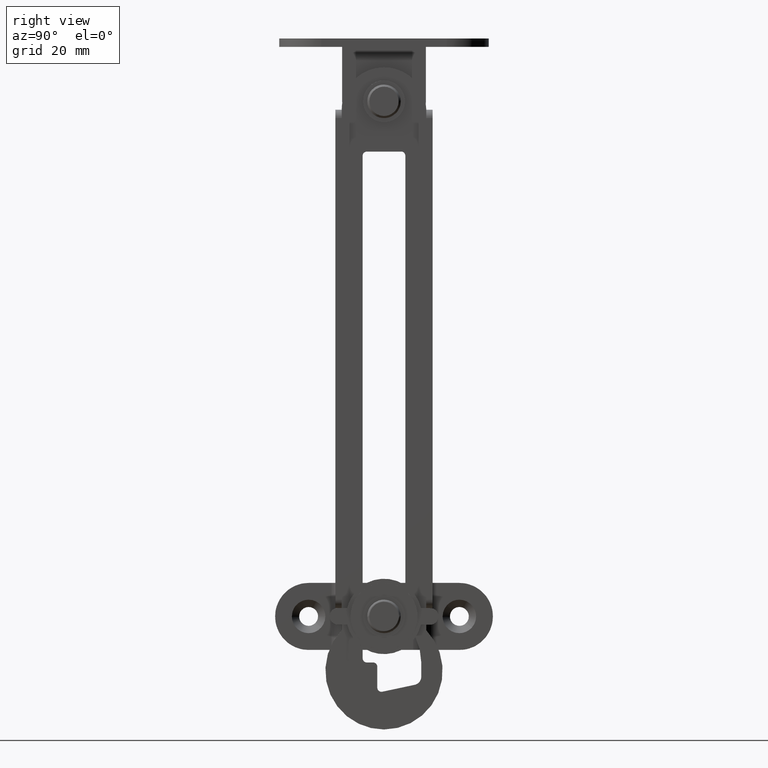
[diagram: clean part render]
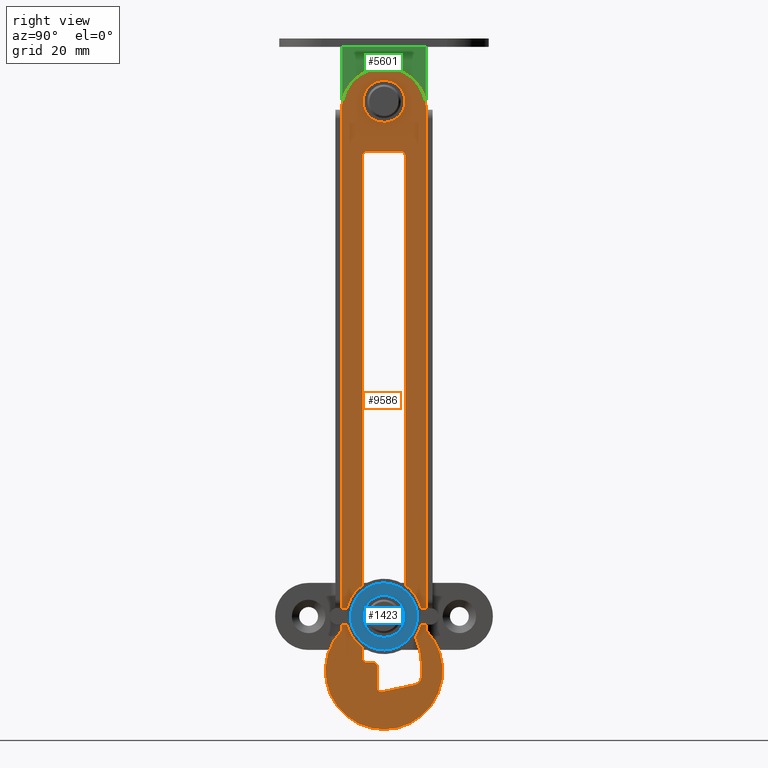
[diagram: same view with three faces highlighted in distinct colors, each labeled with its STEP entity id]
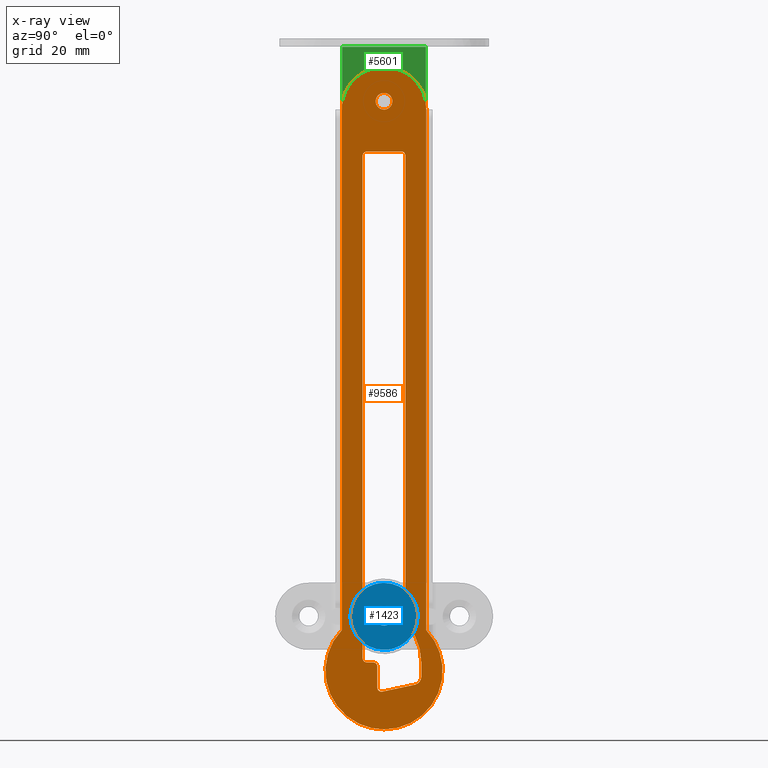
[diagram: x-ray of the same camera — body ghosted, the three highlighted faces saturated]
A machine part, right view with three faces highlighted in distinct colors.
The next image is the same camera in x-ray (body ghosted, the three faces saturated) — at least one of them is partly hidden behind the body in this view.
Their STEP definitions:

[orange] entity #9586 — the highlighted face is a freeform B-spline surface patch.
#7898=CARTESIAN_POINT('',(6.500000000000000,-1.401818130425980,1.426501270304761));
#7899=VERTEX_POINT('',#7898);
#7905=CARTESIAN_POINT('',(6.500000000000000,-1.999999999999999,-0.000000055035999));
#7906=VERTEX_POINT('',#7905);
#7907=CARTESIAN_POINT('',(6.500000000000000,-1.999999999999999,-0.000000055035999));
#7908=CARTESIAN_POINT('',(6.499999999999998,-2.000801605296121,0.331074792098914));
#7909=CARTESIAN_POINT('',(6.499999999999989,-1.865379621508600,0.859626920912765));
#7910=CARTESIAN_POINT('',(6.500000000000007,-1.543471408052776,1.287396064692109));
#7911=CARTESIAN_POINT('',(6.500000000000000,-1.401818130425980,1.426501270304761));
#7912=B_SPLINE_CURVE_WITH_KNOTS('',3,(#7907,#7908,#7909,#7910,#7911),.UNSPECIFIED.,.F.,.U.,(4,1,4),(0.000000148909229,0.992664741090703,1.588290959198804),.UNSPECIFIED.);
#7913=EDGE_CURVE('',#7906,#7899,#7912,.T.);
#7915=CARTESIAN_POINT('',(6.500000000000000,0.0,-2.0));
#7916=VERTEX_POINT('',#7915);
#7917=CARTESIAN_POINT('',(6.500000000000000,0.0,-2.0));
#7918=CARTESIAN_POINT('',(6.500000000000002,-0.196326236803006,-2.000025129273309));
#7919=CARTESIAN_POINT('',(6.500000000000007,-0.654572953151147,-1.932213638662527));
#7920=CARTESIAN_POINT('',(6.499999999999980,-1.242929850331033,-1.617733343522101));
#7921=CARTESIAN_POINT('',(6.500000000000023,-1.653785319402174,-1.164054646524848));
#7922=CARTESIAN_POINT('',(6.499999999999993,-1.926761413123408,-0.638004529938924));
#7923=CARTESIAN_POINT('',(6.500000000000006,-2.000198975283831,-0.245471631698664));
#7924=CARTESIAN_POINT('',(6.500000000000000,-1.999999999999999,-0.000000055035999));
#7925=B_SPLINE_CURVE_WITH_KNOTS('',3,(#7917,#7918,#7919,#7920,#7921,#7922,#7923,#7924),.UNSPECIFIED.,.F.,.U.,(4,1,1,1,1,4),(0.000000633118132,0.589043774118171,1.374526089243631,1.963502022072255,2.405343520437926,3.141671457811024),.UNSPECIFIED.);
#7926=EDGE_CURVE('',#7916,#7906,#7925,.T.);
#7928=CARTESIAN_POINT('',(6.500000000000000,1.401818130425981,-1.426501270304762));
#7929=VERTEX_POINT('',#7928);
#7930=CARTESIAN_POINT('',(6.500000000000000,1.401818130425981,-1.426501270304762));
#7931=CARTESIAN_POINT('',(6.499999999999995,1.286420066040690,-1.539879864862290));
#7932=CARTESIAN_POINT('',(6.500000000000021,0.872917608500746,-1.858060431330297));
#7933=CARTESIAN_POINT('',(6.499999999999992,0.356252315885464,-2.000993771219614));
#7934=CARTESIAN_POINT('',(6.500000000000000,0.0,-2.0));
#7935=B_SPLINE_CURVE_WITH_KNOTS('',3,(#7930,#7931,#7932,#7933,#7934),.UNSPECIFIED.,.F.,.U.,(4,1,4),(0.000057332588186,0.485474589826488,1.553409172210848),.UNSPECIFIED.);
#7936=EDGE_CURVE('',#7929,#7916,#7935,.T.);
#7975=CARTESIAN_POINT('',(6.500000000000000,1.999999999999999,0.000000055035993));
#7976=VERTEX_POINT('',#7975);
#7977=CARTESIAN_POINT('',(6.500000000000000,1.999999999999999,0.000000055035993));
#7978=CARTESIAN_POINT('',(6.499999999999994,2.000033243038247,-0.198510924622109));
#7979=CARTESIAN_POINT('',(6.500000000000023,1.920725826528605,-0.728047369380959));
#7980=CARTESIAN_POINT('',(6.499999999999989,1.638410878529170,-1.194951607714130));
#7981=CARTESIAN_POINT('',(6.500000000000000,1.401818130425981,-1.426501270304762));
#7982=B_SPLINE_CURVE_WITH_KNOTS('',3,(#7977,#7978,#7979,#7980,#7981),.UNSPECIFIED.,.F.,.U.,(4,1,4),(0.000000148909258,0.595626367022481,1.588290959198798),.UNSPECIFIED.);
#7983=EDGE_CURVE('',#7976,#7929,#7982,.T.);
#7985=CARTESIAN_POINT('',(6.500000000000000,0.0,2.0));
#7986=VERTEX_POINT('',#7985);
#7987=CARTESIAN_POINT('',(6.500000000000000,0.0,2.0));
#7988=CARTESIAN_POINT('',(6.500000000000009,0.196348095666510,2.000070016343258));
#7989=CARTESIAN_POINT('',(6.499999999999984,0.589002105534888,1.941702682557977));
#7990=CARTESIAN_POINT('',(6.500000000000006,1.187280142726105,1.659028552174805));
#7991=CARTESIAN_POINT('',(6.500000000000001,1.623590074524727,1.222641936926909));
#7992=CARTESIAN_POINT('',(6.499999999999993,1.926727771590865,0.637989628471462));
#7993=CARTESIAN_POINT('',(6.500000000000004,2.000223993982883,0.245475106367751));
#7994=CARTESIAN_POINT('',(6.500000000000000,1.999999999999999,0.000000055035993));
#7995=B_SPLINE_CURVE_WITH_KNOTS('',3,(#7987,#7988,#7989,#7990,#7991,#7992,#7993,#7994),.UNSPECIFIED.,.F.,.U.,(4,1,1,1,1,4),(0.000000633118024,0.589043774118085,1.178173068856876,1.963502022072236,2.405343520437921,3.141671457811028),.UNSPECIFIED.);
#7996=EDGE_CURVE('',#7986,#7976,#7995,.T.);
#7998=CARTESIAN_POINT('',(6.500000000000000,-1.401818130425980,1.426501270304761));
#7999=CARTESIAN_POINT('',(6.499999999999999,-1.286420276562166,1.539880824592787));
#8000=CARTESIAN_POINT('',(6.499999999999999,-0.872917935235357,1.858059068356832));
#8001=CARTESIAN_POINT('',(6.500000000000010,-0.356252374318572,2.000994025447797));
#8002=CARTESIAN_POINT('',(6.500000000000000,0.0,2.0));
#8003=B_SPLINE_CURVE_WITH_KNOTS('',3,(#7998,#7999,#8000,#8001,#8002),.UNSPECIFIED.,.F.,.U.,(4,1,4),(0.000057332588200,0.485474589826494,1.553409172210848),.UNSPECIFIED.);
#8004=EDGE_CURVE('',#7899,#7986,#8003,.T.);
#8685=CARTESIAN_POINT('',(6.500000000000000,-4.100007000000000,-12.0));
#8686=VERTEX_POINT('',#8685);
#8692=CARTESIAN_POINT('',(6.500000000000000,-5.100006999999830,-13.0));
#8693=VERTEX_POINT('',#8692);
#8694=CARTESIAN_POINT('',(6.500000000000000,-4.100007000000000,-12.0));
#8695=CARTESIAN_POINT('',(6.500000000000006,-4.296573827954636,-11.999277529240290));
#8696=CARTESIAN_POINT('',(6.500000000000004,-4.573841329061533,-12.084567592972800));
#8697=CARTESIAN_POINT('',(6.500000000000000,-4.860905272052997,-12.332430680271900));
#8698=CARTESIAN_POINT('',(6.499999999999985,-5.044749060021313,-12.607446855269879));
#8699=CARTESIAN_POINT('',(6.500000000000000,-5.100246897223162,-12.852691474383359));
#8700=CARTESIAN_POINT('',(6.500000000000000,-5.100006999999830,-13.0));
#8701=B_SPLINE_CURVE_WITH_KNOTS('',3,(#8694,#8695,#8696,#8697,#8698,#8699,#8700),.UNSPECIFIED.,.F.,.U.,(4,1,1,1,4),(0.000001035569130,0.589114396690603,0.834502874643626,1.129115061550070,1.570953883565058),.UNSPECIFIED.);
#8702=EDGE_CURVE('',#8686,#8693,#8701,.T.);
#8719=CARTESIAN_POINT('',(6.500000000000000,-5.100007000000000,-133.000014999999990));
#8720=VERTEX_POINT('',#8719);
#8721=CARTESIAN_POINT('',(6.500000000000000,-5.100007000000000,-133.000014999999990));
#8722=CARTESIAN_POINT('',(6.500000000000000,-5.100006999999830,-13.0));
#8723=QUASI_UNIFORM_CURVE('',1,(#8721,#8722),.UNSPECIFIED.,.F.,.U.);
#8724=EDGE_CURVE('',#8720,#8693,#8723,.T.);
#8750=CARTESIAN_POINT('',(6.500000000000000,-4.100007000000000,-134.000014999999990));
#8751=VERTEX_POINT('',#8750);
#8752=CARTESIAN_POINT('',(6.500000000000000,-5.100007000000000,-133.000014999999990));
#8753=CARTESIAN_POINT('',(6.500000000000000,-5.100237715980876,-133.147330681326990));
#8754=CARTESIAN_POINT('',(6.500000000000002,-5.044749797601982,-133.392555860850990));
#8755=CARTESIAN_POINT('',(6.500000000000002,-4.833403862625243,-133.708944593659310));
#8756=CARTESIAN_POINT('',(6.500000000000001,-4.525268960487343,-133.937462948803610));
#8757=CARTESIAN_POINT('',(6.499999999999999,-4.247312817795333,-134.000229991209810));
#8758=CARTESIAN_POINT('',(6.500000000000000,-4.100007000000000,-134.000014999999990));
#8759=B_SPLINE_CURVE_WITH_KNOTS('',3,(#8752,#8753,#8754,#8755,#8756,#8757,#8758),.UNSPECIFIED.,.F.,.U.,(4,1,1,1,4),(0.000001035571785,0.441839857585976,0.736452044491731,1.129115061550782,1.570953883565300),.UNSPECIFIED.);
#8760=EDGE_CURVE('',#8720,#8751,#8759,.T.);
#8777=CARTESIAN_POINT('',(6.500000000000000,-2.600006336774890,-134.000015000000190));
#8778=VERTEX_POINT('',#8777);
#8779=CARTESIAN_POINT('',(6.500000000000000,-2.600006336774890,-134.000015000000190));
#8780=CARTESIAN_POINT('',(6.500000000000000,-4.100007000000000,-134.000014999999990));
#8781=QUASI_UNIFORM_CURVE('',1,(#8779,#8780),.UNSPECIFIED.,.F.,.U.);
#8782=EDGE_CURVE('',#8778,#8751,#8781,.T.);
#8808=CARTESIAN_POINT('',(6.500000000000000,-1.600006999999950,-135.000014999999990));
#8809=VERTEX_POINT('',#8808);
#8810=CARTESIAN_POINT('',(6.500000000000000,-1.600006999999950,-135.000014999999990));
#8811=CARTESIAN_POINT('',(6.500000000000004,-1.599320268089568,-134.803478872693400));
#8812=CARTESIAN_POINT('',(6.499999999999986,-1.699618341230053,-134.477169516926890));
#8813=CARTESIAN_POINT('',(6.500000000000025,-2.077103990650501,-134.099610730635310));
#8814=CARTESIAN_POINT('',(6.499999999999989,-2.403491458307358,-133.999303251696800));
#8815=CARTESIAN_POINT('',(6.500000000000000,-2.600006336774890,-134.000015000000190));
#8816=B_SPLINE_CURVE_WITH_KNOTS('',3,(#8810,#8811,#8812,#8813,#8814,#8815),.UNSPECIFIED.,.F.,.U.,(4,1,1,4),(0.000001037316957,0.589114257063140,0.981840288150958,1.570953509724183),.UNSPECIFIED.);
#8817=EDGE_CURVE('',#8809,#8778,#8816,.T.);
#8834=CARTESIAN_POINT('',(6.500000000000000,-1.600006999999760,-140.000015383972400));
#8835=VERTEX_POINT('',#8834);
#8836=CARTESIAN_POINT('',(6.500000000000000,-1.600006999999760,-140.000015383972400));
#8837=CARTESIAN_POINT('',(6.500000000000000,-1.600006999999950,-135.000014999999990));
#8838=QUASI_UNIFORM_CURVE('',1,(#8836,#8837),.UNSPECIFIED.,.F.,.U.);
#8839=EDGE_CURVE('',#8835,#8809,#8838,.T.);
#8865=CARTESIAN_POINT('',(6.500000000000000,-0.391784999999914,-140.978104000000000));
#8866=VERTEX_POINT('',#8865);
#8867=CARTESIAN_POINT('',(6.500000000000000,-1.600006999999760,-140.000015383972400));
#8868=CARTESIAN_POINT('',(6.500000000000000,-1.600228572641117,-140.148434553528290));
#8869=CARTESIAN_POINT('',(6.500000000000004,-1.536919003725331,-140.426437181627790));
#8870=CARTESIAN_POINT('',(6.500000000000000,-1.277453173463461,-140.775343727704010));
#8871=CARTESIAN_POINT('',(6.499999999999998,-0.879965997921482,-140.999386699537690));
#8872=CARTESIAN_POINT('',(6.500000000000012,-0.555056611205424,-141.013241587578990));
#8873=CARTESIAN_POINT('',(6.500000000000000,-0.391784999999914,-140.978104000000000));
#8874=B_SPLINE_CURVE_WITH_KNOTS('',3,(#8867,#8868,#8869,#8870,#8871,#8872,#8873),.UNSPECIFIED.,.F.,.U.,(4,1,1,1,4),(0.000000935633885,0.445198635681058,0.834773397477701,1.279934613744671,1.780785455851858),.UNSPECIFIED.);
#8875=EDGE_CURVE('',#8835,#8866,#8874,.T.);
#8892=CARTESIAN_POINT('',(6.500000000000000,7.316435970851051,-139.337143006205390));
#8893=VERTEX_POINT('',#8892);
#8894=CARTESIAN_POINT('',(6.500000000000000,7.316435970851051,-139.337143006205390));
#8895=CARTESIAN_POINT('',(6.500000000000000,-0.391784999999914,-140.978104000000000));
#8896=QUASI_UNIFORM_CURVE('',1,(#8894,#8895),.UNSPECIFIED.,.F.,.U.);
#8897=EDGE_CURVE('',#8893,#8866,#8896,.T.);
#8923=CARTESIAN_POINT('',(6.500000000000000,8.899993000000000,-137.380966000000000));
#8924=VERTEX_POINT('',#8923);
#8925=CARTESIAN_POINT('',(6.500000000000000,7.316435970851051,-139.337143006205390));
#8926=CARTESIAN_POINT('',(6.499999999999996,7.538308659320008,-139.289999308364910));
#8927=CARTESIAN_POINT('',(6.500000000000001,8.019351355174040,-139.098042583357800));
#8928=CARTESIAN_POINT('',(6.500000000000006,8.564489234545379,-138.577181319789190));
#8929=CARTESIAN_POINT('',(6.499999999999994,8.849132851596448,-137.948071027729410));
#8930=CARTESIAN_POINT('',(6.500000000000012,8.900012018851143,-137.551082938329100));
#8931=CARTESIAN_POINT('',(6.500000000000000,8.899993000000000,-137.380966000000000));
#8932=B_SPLINE_CURVE_WITH_KNOTS('',3,(#8925,#8926,#8927,#8928,#8929,#8930,#8931),.UNSPECIFIED.,.F.,.U.,(4,1,1,1,4),(0.000000313227684,0.680578689556774,1.531269298057837,2.211891206057402,2.722300717061263),.UNSPECIFIED.);
#8933=EDGE_CURVE('',#8893,#8924,#8932,.T.);
#8950=CARTESIAN_POINT('',(6.500000000000000,8.899992999999480,-134.000019398229800));
#8951=VERTEX_POINT('',#8950);
#8952=CARTESIAN_POINT('',(6.500000000000000,8.899992999999480,-134.000019398229800));
#8953=CARTESIAN_POINT('',(6.500000000000000,8.899993000000000,-137.380966000000000));
#8954=QUASI_UNIFORM_CURVE('',1,(#8952,#8953),.UNSPECIFIED.,.F.,.U.);
#8955=EDGE_CURVE('',#8951,#8924,#8954,.T.);
#8981=CARTESIAN_POINT('',(6.500000000000000,5.575004375000170,-124.942193399658000));
#8982=VERTEX_POINT('',#8981);
#8983=CARTESIAN_POINT('',(6.500000000000000,8.899992999999480,-134.000019398229800));
#8984=CARTESIAN_POINT('',(6.500000000000010,8.900813957590074,-132.563304572297400));
#8985=CARTESIAN_POINT('',(6.499999999999996,8.581172826682115,-130.511585901917900));
#8986=CARTESIAN_POINT('',(6.499999999999990,7.379457441245473,-127.448033882646900));
#8987=CARTESIAN_POINT('',(6.499999999999989,6.372019025455373,-125.880871430662490));
#8988=CARTESIAN_POINT('',(6.500000000000000,5.575004375000170,-124.942193399658000));
#8989=B_SPLINE_CURVE_WITH_KNOTS('',3,(#8983,#8984,#8985,#8986,#8987,#8988),.UNSPECIFIED.,.F.,.U.,(4,1,1,4),(0.000000056868247,4.309772587231458,6.156766020036908,9.850827064580525),.UNSPECIFIED.);
#8990=EDGE_CURVE('',#8951,#8982,#8989,.T.);
#9016=CARTESIAN_POINT('',(6.500000000000000,5.100006000000180,-123.648218885323600));
#9017=VERTEX_POINT('',#9016);
#9018=CARTESIAN_POINT('',(6.500000000000000,5.100006000000180,-123.648218885323600));
#9019=CARTESIAN_POINT('',(6.499999999999995,5.099688366262109,-123.912138341799700));
#9020=CARTESIAN_POINT('',(6.500000000000016,5.194336139970146,-124.380925548070000));
#9021=CARTESIAN_POINT('',(6.499999999999994,5.442133618227310,-124.785772954937000));
#9022=CARTESIAN_POINT('',(6.500000000000000,5.575004375000170,-124.942193399658000));
#9023=B_SPLINE_CURVE_WITH_KNOTS('',3,(#9018,#9019,#9020,#9021,#9022),.UNSPECIFIED.,.F.,.U.,(4,1,4),(0.000000098045417,0.791643323929199,1.407366598724693),.UNSPECIFIED.);
#9024=EDGE_CURVE('',#9017,#8982,#9023,.T.);
#9041=CARTESIAN_POINT('',(6.500000000000000,5.100005999999830,-13.000000488692200));
#9042=VERTEX_POINT('',#9041);
#9043=CARTESIAN_POINT('',(6.500000000000000,5.100005999999830,-13.000000488692200));
#9044=CARTESIAN_POINT('',(6.500000000000000,5.100006000000180,-123.648218885323600));
#9045=QUASI_UNIFORM_CURVE('',1,(#9043,#9044),.UNSPECIFIED.,.F.,.U.);
#9046=EDGE_CURVE('',#9042,#9017,#9045,.T.);
#9072=CARTESIAN_POINT('',(6.500000000000000,4.100005598574220,-12.0));
#9073=VERTEX_POINT('',#9072);
#9074=CARTESIAN_POINT('',(6.500000000000000,5.100005999999830,-13.000000488692200));
#9075=CARTESIAN_POINT('',(6.500000000000000,5.100061016927429,-12.885471009396230));
#9076=CARTESIAN_POINT('',(6.500000000000001,5.057450411645355,-12.640004621338489));
#9077=CARTESIAN_POINT('',(6.500000000000009,4.860284366862512,-12.310918711848240));
#9078=CARTESIAN_POINT('',(6.499999999999999,4.525241559833044,-12.062563533395631));
#9079=CARTESIAN_POINT('',(6.500000000000006,4.247309961945345,-11.999777796633779));
#9080=CARTESIAN_POINT('',(6.500000000000000,4.100005598574220,-12.0));
#9081=B_SPLINE_CURVE_WITH_KNOTS('',3,(#9074,#9075,#9076,#9077,#9078,#9079,#9080),.UNSPECIFIED.,.F.,.U.,(4,1,1,1,4),(0.000001033225177,0.343638745351987,0.736452276698785,1.129115423266536,1.570954385299348),.UNSPECIFIED.);
#9082=EDGE_CURVE('',#9042,#9073,#9081,.T.);
#9099=CARTESIAN_POINT('',(6.500000000000000,-4.100007000000000,-12.0));
#9100=CARTESIAN_POINT('',(6.500000000000000,4.100005598574220,-12.0));
#9101=QUASI_UNIFORM_CURVE('',1,(#9099,#9100),.UNSPECIFIED.,.F.,.U.);
#9102=EDGE_CURVE('',#8686,#9073,#9101,.T.);
#9157=CARTESIAN_POINT('',(6.500000000000000,-10.100007000000000,-121.000015000000000));
#9158=VERTEX_POINT('',#9157);
#9181=CARTESIAN_POINT('',(6.500000000000000,-10.100007000000000,-2.0));
#9182=VERTEX_POINT('',#9181);
#9183=CARTESIAN_POINT('',(6.500000000000000,-10.100007000000000,-2.0));
#9184=CARTESIAN_POINT('',(6.500000000000000,-10.100007000000000,-121.000015000000000));
#9185=QUASI_UNIFORM_CURVE('',1,(#9183,#9184),.UNSPECIFIED.,.F.,.U.);
#9186=EDGE_CURVE('',#9182,#9158,#9185,.T.);
#9239=CARTESIAN_POINT('',(6.500000000000000,10.100006000000061,-121.000015000000000));
#9240=VERTEX_POINT('',#9239);
#9249=CARTESIAN_POINT('',(6.500000000000000,10.100006000000061,-2.0));
#9250=VERTEX_POINT('',#9249);
#9256=CARTESIAN_POINT('',(6.500000000000000,10.100006000000061,-2.0));
#9257=CARTESIAN_POINT('',(6.500000000000000,10.100006000000061,-121.000015000000000));
#9258=QUASI_UNIFORM_CURVE('',1,(#9256,#9257),.UNSPECIFIED.,.F.,.U.);
#9259=EDGE_CURVE('',#9250,#9240,#9258,.T.);
#9327=CARTESIAN_POINT('',(6.500000000000000,10.100006000000061,-126.305177260256000));
#9328=VERTEX_POINT('',#9327);
#9329=CARTESIAN_POINT('',(6.500000000000000,10.100006000000061,-126.305177260256000));
#9330=CARTESIAN_POINT('',(6.500000000000000,10.100006000000061,-121.000015000000000));
#9331=QUASI_UNIFORM_CURVE('',1,(#9329,#9330),.UNSPECIFIED.,.F.,.U.);
#9332=EDGE_CURVE('',#9328,#9240,#9331,.T.);
#9367=CARTESIAN_POINT('',(6.500000000000001,0.000005867955349,-150.000014999998800));
#9368=VERTEX_POINT('',#9367);
#9369=CARTESIAN_POINT('',(6.500000000000001,0.000005867955349,-150.000014999998800));
#9370=CARTESIAN_POINT('',(6.500000000000004,0.425774520095588,-150.000022084726110));
#9371=CARTESIAN_POINT('',(6.500000000000010,0.894090563072024,-149.978604633431900));
#9372=CARTESIAN_POINT('',(6.500000000000000,1.402670392741061,-149.929942782536190));
#9373=CARTESIAN_POINT('',(6.500000000000004,1.529549511579449,-149.915410687428790));
#9374=CARTESIAN_POINT('',(6.500000000000002,1.698896578985876,-149.897274377073810));
#9375=CARTESIAN_POINT('',(6.499999999999988,2.796998325773016,-149.756136781638990));
#9376=CARTESIAN_POINT('',(6.500000000000034,4.501238351286051,-149.335615849556800));
#9377=CARTESIAN_POINT('',(6.499999999999969,7.035547468475508,-148.204994492189510));
#9378=CARTESIAN_POINT('',(6.500000000000054,9.423233351325568,-146.531487438783390));
#9379=CARTESIAN_POINT('',(6.499999999999928,10.954199519172640,-144.794342657089800));
#9380=CARTESIAN_POINT('',(6.500000000000020,11.645859012210620,-143.771333340668410));
#9381=CARTESIAN_POINT('',(6.500000000000002,11.738303694986440,-143.628293919034410));
#9382=CARTESIAN_POINT('',(6.500000000000002,11.808368650713209,-143.521522020562200));
#9383=CARTESIAN_POINT('',(6.500000000000005,11.944387707995871,-143.305302535985700));
#9384=CARTESIAN_POINT('',(6.499999999999997,12.075987966703270,-143.086307697634400));
#9385=CARTESIAN_POINT('',(6.500000000000004,12.201400178240471,-142.863723550973900));
#9386=CARTESIAN_POINT('',(6.500000000000002,12.285227436627039,-142.715457536091210));
#9387=CARTESIAN_POINT('',(6.500000000000002,12.365989467417030,-142.565451643847890));
#9388=CARTESIAN_POINT('',(6.499999999999998,12.443493985245279,-142.413789619405210));
#9389=CARTESIAN_POINT('',(6.500000000000005,12.502918927846240,-142.300692336937690));
#9390=CARTESIAN_POINT('',(6.500000000000001,12.558328456224670,-142.185578042143990));
#9391=CARTESIAN_POINT('',(6.499999999999999,12.615815149775070,-142.071488026888890));
#9392=CARTESIAN_POINT('',(6.500000000000004,12.669142610434950,-141.955393769055090));
#9393=CARTESIAN_POINT('',(6.499999999999901,12.706012912720350,-141.878627445924110));
#9394=CARTESIAN_POINT('',(6.500000000002959,13.221226976717359,-140.756524602107790));
#9395=CARTESIAN_POINT('',(6.499999999996724,13.605022965021490,-139.527326169190500));
#9396=CARTESIAN_POINT('',(6.500000000000354,13.822699957026570,-138.225434519750710));
#9397=CARTESIAN_POINT('',(6.500000000000044,13.847233250447680,-138.056904623220390));
#9398=CARTESIAN_POINT('',(6.499999999999993,13.873391568900320,-137.888614126090000));
#9399=CARTESIAN_POINT('',(6.499999999999996,13.893337224818151,-137.719471684788400));
#9400=CARTESIAN_POINT('',(6.500000000000025,13.919480993299050,-137.508213394569990));
#9401=CARTESIAN_POINT('',(6.500000000000084,13.931795736454511,-137.381074467340000));
#9402=CARTESIAN_POINT('',(6.499999999999862,14.074728655620850,-135.854761098766010));
#9403=CARTESIAN_POINT('',(6.499999999999962,13.939119223623610,-133.704520781916390));
#9404=CARTESIAN_POINT('',(6.499999999999998,13.058484315604231,-130.759445194353500));
#9405=CARTESIAN_POINT('',(6.500000000000013,12.292863901248650,-129.228493146401210));
#9406=CARTESIAN_POINT('',(6.499999999999997,11.715552956743720,-128.334085918888090));
#9407=CARTESIAN_POINT('',(6.500000000000001,11.620102760016231,-128.193025440225400));
#9408=CARTESIAN_POINT('',(6.500000000000000,11.549728889175450,-128.086401542961200));
#9409=CARTESIAN_POINT('',(6.500000000000002,11.475616091022090,-127.982344478540800));
#9410=CARTESIAN_POINT('',(6.500000000000000,11.403402077619790,-127.876961596371400));
#9411=CARTESIAN_POINT('',(6.500000000000000,11.327426333836240,-127.774255182424300));
#9412=CARTESIAN_POINT('',(6.500000000000016,11.277970506347110,-127.704924223572110));
#9413=CARTESIAN_POINT('',(6.499999999999859,10.898052787607041,-127.191598331048700));
#9414=CARTESIAN_POINT('',(6.500000000000289,10.512776214416570,-126.735173000577900));
#9415=CARTESIAN_POINT('',(6.500000000000000,10.100006000000061,-126.305177260256000));
#9416=B_SPLINE_CURVE_WITH_KNOTS('',3,(#9369,#9370,#9371,#9372,#9373,#9374,#9375,#9376,#9377,#9378,#9379,#9380,#9381,#9382,#9383,#9384,#9385,#9386,#9387,#9388,#9389,#9390,#9391,#9392,#9393,#9394,#9395,#9396,#9397,#9398,#9399,#9400,#9401,#9402,#9403,#9404,#9405,#9406,#9407,#9408,#9409,#9410,#9411,#9412,#9413,#9414,#9415),.UNSPECIFIED.,.F.,.U.,(4,1,1,1,1,1,1,1,1,1,1,1,1,1,1,1,1,1,1,1,1,1,1,2,1,1,1,1,1,1,2,1,1,1,1,1,1,1,1,1,2,4),(0.000586377256532,1.277900001553633,1.405543145957182,1.533280186505131,1.661017227053062,1.916491021736171,4.854464454163512,6.898238018311378,10.219374243722401,13.540539280534340,13.796015221818029,13.923752805595679,14.051490389373340,14.179128710093920,14.690082552468240,14.817828765434390,14.945574978400520,15.201067227325741,15.328812745633179,15.456558263940609,15.584302548582651,15.712046833224671,15.839789135705960,15.967531438187260,19.543948376612668,19.799412342411291,19.927145194334908,20.054878046258551,20.310292579545859,20.438029526288162,20.693503310392430,25.036554823398092,27.080325564927179,29.890509509530990,30.145993368857919,30.273734915602361,30.401476462346810,30.529217232321219,30.656958002295660,30.784697521789731,30.912437041283798,32.700606629468297),.UNSPECIFIED.);
#9417=EDGE_CURVE('',#9368,#9328,#9416,.T.);
#9419=CARTESIAN_POINT('',(6.500000000000000,-10.100007000000000,-126.305178302048200));
#9420=VERTEX_POINT('',#9419);
#9421=CARTESIAN_POINT('',(6.500000000000000,-10.100007000000000,-126.305178302048200));
#9422=CARTESIAN_POINT('',(6.500000000000002,-10.394852157906239,-126.612335252378500));
#9423=CARTESIAN_POINT('',(6.499999999999997,-10.703704623174280,-126.965023381804300));
#9424=CARTESIAN_POINT('',(6.500000000000004,-11.020784404685500,-127.365625422889490));
#9425=CARTESIAN_POINT('',(6.500000000000004,-11.098162382120890,-127.467223219367000));
#9426=CARTESIAN_POINT('',(6.500000000000003,-11.202346166581339,-127.601955474384500));
#9427=CARTESIAN_POINT('',(6.499999999999989,-11.860904902043711,-128.491905455539890));
#9428=CARTESIAN_POINT('',(6.500000000000019,-13.037535711946390,-130.531731329770910));
#9429=CARTESIAN_POINT('',(6.500000000000003,-13.908831140935980,-133.545706181414090));
#9430=CARTESIAN_POINT('',(6.499999999999990,-14.063131832861590,-136.449165022408210));
#9431=CARTESIAN_POINT('',(6.500000000000033,-13.858430754015661,-138.145756546177410));
#9432=CARTESIAN_POINT('',(6.499999999999997,-13.671121624253180,-139.020133157404590));
#9433=CARTESIAN_POINT('',(6.500000000000001,-13.632106751865740,-139.185921778881410));
#9434=CARTESIAN_POINT('',(6.500000000000005,-13.573812944574460,-139.434658270871610));
#9435=CARTESIAN_POINT('',(6.499999999999996,-13.508524313856521,-139.681667674228890));
#9436=CARTESIAN_POINT('',(6.500000000000003,-13.438313590183760,-139.927277154085290));
#9437=CARTESIAN_POINT('',(6.500000000000001,-13.400788365236940,-140.049355294461800));
#9438=CARTESIAN_POINT('',(6.500000000000001,-13.352088771836790,-140.212567410079400));
#9439=CARTESIAN_POINT('',(6.500000000000000,-13.299802349631570,-140.374710451653100));
#9440=CARTESIAN_POINT('',(6.500000000000000,-13.244057907967560,-140.535648115003600));
#9441=CARTESIAN_POINT('',(6.500000000000003,-13.203617652858039,-140.656837684103410));
#9442=CARTESIAN_POINT('',(6.500000000000000,-13.158941299963500,-140.776527075746490));
#9443=CARTESIAN_POINT('',(6.500000000000002,-13.116442306183551,-140.897005693443990));
#9444=CARTESIAN_POINT('',(6.500000000000001,-13.069617170449430,-141.015871633496800));
#9445=CARTESIAN_POINT('',(6.499999999998300,-13.039741669265601,-141.095615590626210));
#9446=CARTESIAN_POINT('',(6.500000000000922,-12.587158674943559,-142.244432808653700));
#9447=CARTESIAN_POINT('',(6.500000000001179,-11.965908787342141,-143.372386471891190));
#9448=CARTESIAN_POINT('',(6.499999999999695,-11.177551612301899,-144.431042113274200));
#9449=CARTESIAN_POINT('',(6.500000000000017,-11.072951907219201,-144.565443230888800));
#9450=CARTESIAN_POINT('',(6.500000000000009,-10.969637303763131,-144.700838467408800));
#9451=CARTESIAN_POINT('',(6.499999999999976,-10.861483404521030,-144.832405490957510));
#9452=CARTESIAN_POINT('',(6.500000000000110,-10.726916701735011,-144.997341590754790));
#9453=CARTESIAN_POINT('',(6.499999999999642,-9.927651513465484,-145.938673309605690));
#9454=CARTESIAN_POINT('',(6.500000000000289,-8.406141997010977,-147.324743530305110));
#9455=CARTESIAN_POINT('',(6.499999999999845,-5.748737870904630,-148.878873057083500));
#9456=CARTESIAN_POINT('',(6.500000000000063,-3.794721686369058,-149.525271184987790));
#9457=CARTESIAN_POINT('',(6.499999999999988,-2.582439316485182,-149.760451421841910));
#9458=CARTESIAN_POINT('',(6.500000000000003,-2.414601871387279,-149.789399288548310));
#9459=CARTESIAN_POINT('',(6.500000000000004,-2.288938076142567,-149.812410804421890));
#9460=CARTESIAN_POINT('',(6.499999999999997,-2.162545991728455,-149.831001952337690));
#9461=CARTESIAN_POINT('',(6.500000000000001,-2.036512309753393,-149.851881053635910));
#9462=CARTESIAN_POINT('',(6.499999999999999,-1.909804556159905,-149.868192907196290));
#9463=CARTESIAN_POINT('',(6.499999999999986,-1.825539573370202,-149.880524896901190));
#9464=CARTESIAN_POINT('',(6.500000000000135,-1.192122540909462,-149.961913253709010));
#9465=CARTESIAN_POINT('',(6.499999999999720,-0.596044306019277,-150.000032586348110));
#9466=CARTESIAN_POINT('',(6.500000000000001,0.000005867955349,-150.000014999998800));
#9467=B_SPLINE_CURVE_WITH_KNOTS('',3,(#9421,#9422,#9423,#9424,#9425,#9426,#9427,#9428,#9429,#9430,#9431,#9432,#9433,#9434,#9435,#9436,#9437,#9438,#9439,#9440,#9441,#9442,#9443,#9444,#9445,#9446,#9447,#9448,#9449,#9450,#9451,#9452,#9453,#9454,#9455,#9456,#9457,#9458,#9459,#9460,#9461,#9462,#9463,#9464,#9465,#9466),.UNSPECIFIED.,.F.,.U.,(4,1,1,1,1,1,1,1,1,1,1,1,1,1,1,1,1,1,1,1,1,1,1,2,1,1,1,1,1,1,1,1,1,1,1,1,1,1,1,1,2,4),(0.000586377895118,1.277900404111698,1.405543588716416,1.533280669469892,1.661017750223358,1.916491625316393,4.854465982399727,8.686546443997788,11.241267131267760,13.540543542617600,13.796019564317049,13.923757188302719,14.051494812288400,14.562446026941929,14.690087176245321,14.817833429431049,14.945579682616779,15.201072011981481,15.328817570507850,15.456563129034301,15.584307453893381,15.712051778752450,15.839794121447429,15.967536464142389,19.543954527997869,19.799418574201169,19.927151466327889,20.054884358454590,20.310298972175939,20.438035959122139,20.693509823633509,24.014669668489780,26.569394366159351,29.890518917323870,30.146002857076919,30.273744444034811,30.401486030992690,30.529226841180300,30.656967651367911,30.784707211074220,30.912446770780541,32.700616921695350),.UNSPECIFIED.);
#9468=EDGE_CURVE('',#9420,#9368,#9467,.T.);
#9483=CARTESIAN_POINT('',(6.500000000000000,-10.100007000000000,-121.000015000000000));
#9484=CARTESIAN_POINT('',(6.500000000000000,-10.100007000000000,-126.305178302048200));
#9485=QUASI_UNIFORM_CURVE('',1,(#9483,#9484),.UNSPECIFIED.,.F.,.U.);
#9486=EDGE_CURVE('',#9158,#9420,#9485,.T.);
#9515=CARTESIAN_POINT('',(6.500000000000000,-0.000003828307513,8.100006499999472));
#9516=VERTEX_POINT('',#9515);
#9517=CARTESIAN_POINT('',(6.500000000000000,-0.000003828307513,8.100006499999472));
#9518=CARTESIAN_POINT('',(6.500000000000005,-1.074298172423852,8.100651954104302));
#9519=CARTESIAN_POINT('',(6.499999999999995,-2.767779252140386,7.827042248997927));
#9520=CARTESIAN_POINT('',(6.500000000000006,-5.011796468372252,6.848725084795393));
#9521=CARTESIAN_POINT('',(6.499999999999981,-6.609044851030922,5.723778594924554));
#9522=CARTESIAN_POINT('',(6.500000000000014,-8.153270758019218,4.102080573919362));
#9523=CARTESIAN_POINT('',(6.499999999999959,-9.332219700607920,2.135267187297833));
#9524=CARTESIAN_POINT('',(6.500000000000072,-9.982683186387014,-0.058185013424164));
#9525=CARTESIAN_POINT('',(6.499999999999921,-10.100023627416389,-1.421604634202648));
#9526=CARTESIAN_POINT('',(6.500000000000000,-10.100007000000000,-2.0));
#9527=B_SPLINE_CURVE_WITH_KNOTS('',3,(#9517,#9518,#9519,#9520,#9521,#9522,#9523,#9524,#9525,#9526),.UNSPECIFIED.,.F.,.U.,(4,1,1,1,1,1,1,4),(0.000000333540692,3.222609231653086,5.081837482115661,7.312858298304068,9.048028793671836,11.774915204988650,14.129938154373219,15.865150781404790),.UNSPECIFIED.);
#9528=EDGE_CURVE('',#9516,#9182,#9527,.T.);
#9530=CARTESIAN_POINT('',(6.500000000000000,10.100006000000061,-2.0));
#9531=CARTESIAN_POINT('',(6.499999999999996,10.101173609962601,-0.760350580268389));
#9532=CARTESIAN_POINT('',(6.500000000000010,9.714613344857565,1.304479645825963));
#9533=CARTESIAN_POINT('',(6.499999999999984,8.282220940437357,3.984628166183863));
#9534=CARTESIAN_POINT('',(6.500000000000016,6.709904738854158,5.656392681987589));
#9535=CARTESIAN_POINT('',(6.499999999999976,5.001666233820648,6.827945213585777));
#9536=CARTESIAN_POINT('',(6.500000000000041,2.932957865453798,7.791472528094824));
#9537=CARTESIAN_POINT('',(6.500000000000068,1.156919757054793,8.100700098654722));
#9538=CARTESIAN_POINT('',(6.500000000000000,-0.000003828307513,8.100006499999472));
#9539=B_SPLINE_CURVE_WITH_KNOTS('',3,(#9530,#9531,#9532,#9533,#9534,#9535,#9536,#9537,#9538),.UNSPECIFIED.,.F.,.U.,(4,1,1,1,1,1,4),(0.000000332383731,3.718391077241288,6.197368515222276,9.048030936656446,10.535428281974680,12.394661205987211,15.865154533206640),.UNSPECIFIED.);
#9540=EDGE_CURVE('',#9250,#9516,#9539,.T.);
#9546=CARTESIAN_POINT('',(6.500000000000090,-15.397194791594870,15.997102267495871));
#9547=CARTESIAN_POINT('',(6.500000000000090,15.397271554817030,15.997102267495871));
#9548=CARTESIAN_POINT('',(6.500000000000090,-15.397194791594870,-157.897115008068200));
#9549=CARTESIAN_POINT('',(6.500000000000090,15.397271554817030,-157.897115008068200));
#9550=B_SPLINE_SURFACE_WITH_KNOTS('',1,1,((#9546,#9548),(#9547,#9549)),.UNSPECIFIED.,.F.,.F.,.U.,(2,2),(2,2),(0.0,30.794466346411891),(0.0,173.894217275564100),.UNSPECIFIED.);
#9551=ORIENTED_EDGE('',*,*,#9540,.T.);
#9552=ORIENTED_EDGE('',*,*,#9528,.T.);
#9553=ORIENTED_EDGE('',*,*,#9186,.T.);
#9554=ORIENTED_EDGE('',*,*,#9486,.T.);
#9555=ORIENTED_EDGE('',*,*,#9468,.T.);
#9556=ORIENTED_EDGE('',*,*,#9417,.T.);
#9557=ORIENTED_EDGE('',*,*,#9332,.T.);
#9558=ORIENTED_EDGE('',*,*,#9259,.F.);
#9559=EDGE_LOOP('',(#9551,#9552,#9553,#9554,#9555,#9556,#9557,#9558));
#9560=FACE_OUTER_BOUND('',#9559,.T.);
#9561=ORIENTED_EDGE('',*,*,#9102,.T.);
#9562=ORIENTED_EDGE('',*,*,#9082,.F.);
#9563=ORIENTED_EDGE('',*,*,#9046,.T.);
#9564=ORIENTED_EDGE('',*,*,#9024,.T.);
#9565=ORIENTED_EDGE('',*,*,#8990,.F.);
#9566=ORIENTED_EDGE('',*,*,#8955,.T.);
#9567=ORIENTED_EDGE('',*,*,#8933,.F.);
#9568=ORIENTED_EDGE('',*,*,#8897,.T.);
#9569=ORIENTED_EDGE('',*,*,#8875,.F.);
#9570=ORIENTED_EDGE('',*,*,#8839,.T.);
#9571=ORIENTED_EDGE('',*,*,#8817,.T.);
#9572=ORIENTED_EDGE('',*,*,#8782,.T.);
#9573=ORIENTED_EDGE('',*,*,#8760,.F.);
#9574=ORIENTED_EDGE('',*,*,#8724,.T.);
#9575=ORIENTED_EDGE('',*,*,#8702,.F.);
#9576=EDGE_LOOP('',(#9561,#9562,#9563,#9564,#9565,#9566,#9567,#9568,#9569,#9570,#9571,#9572,#9573,#9574,#9575));
#9577=FACE_BOUND('',#9576,.T.);
#9578=ORIENTED_EDGE('',*,*,#7996,.T.);
#9579=ORIENTED_EDGE('',*,*,#7983,.T.);
#9580=ORIENTED_EDGE('',*,*,#7936,.T.);
#9581=ORIENTED_EDGE('',*,*,#7926,.T.);
#9582=ORIENTED_EDGE('',*,*,#7913,.T.);
#9583=ORIENTED_EDGE('',*,*,#8004,.T.);
#9584=EDGE_LOOP('',(#9578,#9579,#9580,#9581,#9582,#9583));
#9585=FACE_BOUND('',#9584,.T.);
#9586=ADVANCED_FACE('',(#9560,#9577,#9585),#9550,.F.);

[blue] entity #1423 — the highlighted face is a freeform B-spline surface patch.
#1275=CARTESIAN_POINT('',(10.500000000000000,-8.799199968987928,-114.200815031011100));
#1276=CARTESIAN_POINT('',(10.500000000000000,-8.799199968987928,-131.799215398142390));
#1277=CARTESIAN_POINT('',(10.500000000000000,8.799200398141368,-114.200815031011100));
#1278=CARTESIAN_POINT('',(10.500000000000000,8.799200398141368,-131.799215398142390));
#1279=B_SPLINE_SURFACE_WITH_KNOTS('',1,1,((#1275,#1277),(#1276,#1278)),.UNSPECIFIED.,.F.,.F.,.U.,(2,2),(2,2),(0.0,17.598400367131259),(0.0,17.598400367129290),.UNSPECIFIED.);
#1280=CARTESIAN_POINT('',(10.500000000000000,-7.999999999999119,-123.000011244852300));
#1281=VERTEX_POINT('',#1280);
#1282=CARTESIAN_POINT('',(10.500000000000000,0.0,-115.000015000000000));
#1283=VERTEX_POINT('',#1282);
#1284=CARTESIAN_POINT('',(10.500000000000000,-7.999999999999119,-123.000011244852300));
#1285=CARTESIAN_POINT('',(10.500000000000000,-8.000450684939301,-122.181828380271990));
#1286=CARTESIAN_POINT('',(10.500000000000000,-7.792248009146879,-120.840406224885100));
#1287=CARTESIAN_POINT('',(10.500000000000000,-7.014919335345398,-119.026955128109290));
#1288=CARTESIAN_POINT('',(10.500000000000000,-6.115514510976985,-117.766412194265500));
#1289=CARTESIAN_POINT('',(10.500000000000011,-5.022236023475556,-116.725655659997200));
#1290=CARTESIAN_POINT('',(10.500000000000020,-3.797718117753859,-115.896444133083190));
#1291=CARTESIAN_POINT('',(10.499999999999931,-2.094276514619446,-115.190774947056100));
#1292=CARTESIAN_POINT('',(10.500000000000130,-0.752690675638341,-114.999755089843010));
#1293=CARTESIAN_POINT('',(10.500000000000000,0.0,-115.000015000000000));
#1294=B_SPLINE_CURVE_WITH_KNOTS('',3,(#1284,#1285,#1286,#1287,#1288,#1289,#1290,#1291,#1292,#1293),.UNSPECIFIED.,.F.,.U.,(4,1,1,1,1,1,1,4),(0.000000340435884,2.454372875989016,4.025197414651645,5.890560086561206,7.068575082729073,8.541246202873401,10.308424983630200,12.566447346558309),.UNSPECIFIED.);
#1295=EDGE_CURVE('',#1281,#1283,#1294,.T.);
#1296=ORIENTED_EDGE('',*,*,#1295,.F.);
#1297=CARTESIAN_POINT('',(10.499999999814280,-5.506836187394483,-128.803009072476410));
#1298=VERTEX_POINT('',#1297);
#1299=CARTESIAN_POINT('',(10.499999999814280,-5.506836187394483,-128.803009072476410));
#1300=CARTESIAN_POINT('',(10.499999999837369,-6.268209211232511,-128.082111740141190));
#1301=CARTESIAN_POINT('',(10.499999999879700,-7.201347421156127,-126.757883381382300));
#1302=CARTESIAN_POINT('',(10.499999999945921,-7.879152505068491,-124.690724041721890));
#1303=CARTESIAN_POINT('',(10.499999999981590,-8.000102956949359,-123.574887833151910));
#1304=CARTESIAN_POINT('',(10.500000000000000,-7.999999999999119,-123.000011244852300));
#1305=B_SPLINE_CURVE_WITH_KNOTS('',3,(#1299,#1300,#1301,#1302,#1303,#1304),.UNSPECIFIED.,.F.,.U.,(4,1,1,4),(0.000000095423919,3.144941416192308,4.768054890558902,6.492671378433848),.UNSPECIFIED.);
#1306=EDGE_CURVE('',#1298,#1281,#1305,.T.);
#1307=ORIENTED_EDGE('',*,*,#1306,.F.);
#1308=CARTESIAN_POINT('',(10.500000000000000,0.0,-131.000014999999990));
#1309=VERTEX_POINT('',#1308);
#1310=CARTESIAN_POINT('',(10.500000000000000,0.0,-131.000014999999990));
#1311=CARTESIAN_POINT('',(10.499999999972260,-0.822539071293297,-131.000459537597490));
#1312=CARTESIAN_POINT('',(10.499999999923180,-2.277448532912343,-130.773537221696100));
#1313=CARTESIAN_POINT('',(10.499999999860631,-4.133174869169070,-129.929002280364610));
#1314=CARTESIAN_POINT('',(10.499999999828200,-5.093843353624458,-129.195019326959400));
#1315=CARTESIAN_POINT('',(10.499999999814280,-5.506836187394483,-128.803009072476410));
#1316=B_SPLINE_CURVE_WITH_KNOTS('',3,(#1310,#1311,#1312,#1313,#1314,#1315),.UNSPECIFIED.,.F.,.U.,(4,1,1,4),(0.000000040285493,2.467518311302551,4.365607060044117,6.073888178000821),.UNSPECIFIED.);
#1317=EDGE_CURVE('',#1309,#1298,#1316,.T.);
#1318=ORIENTED_EDGE('',*,*,#1317,.F.);
#1319=CARTESIAN_POINT('',(10.500000000000000,7.999999999999119,-123.000018755147810));
#1320=VERTEX_POINT('',#1319);
#1321=CARTESIAN_POINT('',(10.500000000000000,7.999999999999119,-123.000018755147810));
#1322=CARTESIAN_POINT('',(10.499999999999989,8.000403629389906,-123.818190238898000));
#1323=CARTESIAN_POINT('',(10.500000000000030,7.767043664590481,-125.323295230281700));
#1324=CARTESIAN_POINT('',(10.499999999999970,6.903653693878868,-127.178062520801110));
#1325=CARTESIAN_POINT('',(10.500000000000069,5.871753900396968,-128.500022001256010));
#1326=CARTESIAN_POINT('',(10.499999999999940,4.567743273738230,-129.653330586714790));
#1327=CARTESIAN_POINT('',(10.500000000000000,2.650399219361390,-130.693637020524990));
#1328=CARTESIAN_POINT('',(10.500000000000060,0.949077989155241,-131.000707788290100));
#1329=CARTESIAN_POINT('',(10.500000000000000,0.0,-131.000014999999990));
#1330=B_SPLINE_CURVE_WITH_KNOTS('',3,(#1321,#1322,#1323,#1324,#1325,#1326,#1327,#1328,#1329),.UNSPECIFIED.,.F.,.U.,(4,1,1,1,1,1,4),(0.000000340407537,2.454372875956238,4.516114136464815,6.086895251800422,7.461273622241681,9.719363234450153,12.566447346558171),.UNSPECIFIED.);
#1331=EDGE_CURVE('',#1320,#1309,#1330,.T.);
#1332=ORIENTED_EDGE('',*,*,#1331,.F.);
#1333=CARTESIAN_POINT('',(10.499999999814280,5.506836187394478,-117.197020927523700));
#1334=VERTEX_POINT('',#1333);
#1335=CARTESIAN_POINT('',(10.499999999814280,5.506836187394478,-117.197020927523700));
#1336=CARTESIAN_POINT('',(10.499999999833641,6.145007745354960,-117.801913251090890));
#1337=CARTESIAN_POINT('',(10.499999999870420,7.011720806132159,-118.951276629601490));
#1338=CARTESIAN_POINT('',(10.499999999935090,7.819406320501138,-120.971208827916200));
#1339=CARTESIAN_POINT('',(10.499999999976200,8.000261748421540,-122.256042708345300));
#1340=CARTESIAN_POINT('',(10.500000000000000,7.999999999999119,-123.000018755147810));
#1341=B_SPLINE_CURVE_WITH_KNOTS('',3,(#1335,#1336,#1337,#1338,#1339,#1340),.UNSPECIFIED.,.F.,.U.,(4,1,1,4),(0.000000095419417,2.637670040301398,4.260797239641054,6.492671378433913),.UNSPECIFIED.);
#1342=EDGE_CURVE('',#1334,#1320,#1341,.T.);
#1343=ORIENTED_EDGE('',*,*,#1342,.F.);
#1344=CARTESIAN_POINT('',(10.500000000000000,0.0,-115.000015000000000));
#1345=CARTESIAN_POINT('',(10.499999999967990,0.949169746964724,-114.999206187697890));
#1346=CARTESIAN_POINT('',(10.499999999923190,2.277224024914474,-115.239294448267900));
#1347=CARTESIAN_POINT('',(10.499999999860901,4.124629352321453,-116.080202421792810));
#1348=CARTESIAN_POINT('',(10.499999999831291,5.002156061357757,-116.717755604662300));
#1349=CARTESIAN_POINT('',(10.499999999814280,5.506836187394478,-117.197020927523700));
#1350=B_SPLINE_CURVE_WITH_KNOTS('',3,(#1344,#1345,#1346,#1347,#1348,#1349),.UNSPECIFIED.,.F.,.U.,(4,1,1,4),(0.000000040281891,2.847136020095874,3.985988511048491,6.073888178000949),.UNSPECIFIED.);
#1351=EDGE_CURVE('',#1283,#1334,#1350,.T.);
#1352=ORIENTED_EDGE('',*,*,#1351,.F.);
#1353=EDGE_LOOP('',(#1296,#1307,#1318,#1332,#1343,#1352));
#1354=FACE_OUTER_BOUND('',#1353,.T.);
#1355=CARTESIAN_POINT('',(10.500000000000000,2.199998499988889,-123.000022011003000));
#1356=VERTEX_POINT('',#1355);
#1357=CARTESIAN_POINT('',(10.500000000000000,0.0,-125.200012000000100));
#1358=VERTEX_POINT('',#1357);
#1359=CARTESIAN_POINT('',(10.500000000000000,2.199998499988889,-123.000022011003000));
#1360=CARTESIAN_POINT('',(10.499999999999980,2.200526490737127,-123.324119129113200));
#1361=CARTESIAN_POINT('',(10.500000000000020,2.098756000710894,-123.773619873201600));
#1362=CARTESIAN_POINT('',(10.500000000000000,1.771191851131931,-124.335494922579800));
#1363=CARTESIAN_POINT('',(10.499999999999980,1.437455884229681,-124.694761334409090));
#1364=CARTESIAN_POINT('',(10.500000000000041,0.845483499452256,-125.080034560120500));
#1365=CARTESIAN_POINT('',(10.499999999999950,0.342128829812476,-125.200665813957300));
#1366=CARTESIAN_POINT('',(10.500000000000000,0.0,-125.200012000000100));
#1367=B_SPLINE_CURVE_WITH_KNOTS('',3,(#1359,#1360,#1361,#1362,#1363,#1364,#1365,#1366),.UNSPECIFIED.,.F.,.U.,(4,1,1,1,1,4),(0.000000620676774,0.971958652985675,1.349951126352328,1.943843550106645,2.429864878242031,3.455831151656085),.UNSPECIFIED.);
#1368=EDGE_CURVE('',#1356,#1358,#1367,.T.);
#1369=ORIENTED_EDGE('',*,*,#1368,.T.);
#1370=CARTESIAN_POINT('',(10.499999999764960,-1.514377529342410,-124.595836542997400));
#1371=VERTEX_POINT('',#1370);
#1372=CARTESIAN_POINT('',(10.500000000000000,0.0,-125.200012000000100));
#1373=CARTESIAN_POINT('',(10.499999999940590,-0.383031347625627,-125.201019048288100));
#1374=CARTESIAN_POINT('',(10.499999999854250,-0.938711929762055,-125.050975838094900));
#1375=CARTESIAN_POINT('',(10.499999999784571,-1.388175253308452,-124.715576686675500));
#1376=CARTESIAN_POINT('',(10.499999999764960,-1.514377529342410,-124.595836542997400));
#1377=B_SPLINE_CURVE_WITH_KNOTS('',3,(#1372,#1373,#1374,#1375,#1376),.UNSPECIFIED.,.F.,.U.,(4,1,4),(0.000000130889863,1.148332396365323,1.670316474638810),.UNSPECIFIED.);
#1378=EDGE_CURVE('',#1358,#1371,#1377,.T.);
#1379=ORIENTED_EDGE('',*,*,#1378,.T.);
#1380=CARTESIAN_POINT('',(10.500000000000000,-2.199998499988889,-123.000007988997000));
#1381=VERTEX_POINT('',#1380);
#1382=CARTESIAN_POINT('',(10.499999999764960,-1.514377529342410,-124.595836542997400));
#1383=CARTESIAN_POINT('',(10.499999999802601,-1.785006989840630,-124.340319461607290));
#1384=CARTESIAN_POINT('',(10.499999999879471,-2.108773362822448,-123.818376476748700));
#1385=CARTESIAN_POINT('',(10.499999999967120,-2.200068577550531,-123.223194178988090));
#1386=CARTESIAN_POINT('',(10.500000000000000,-2.199998499988889,-123.000007988997000));
#1387=B_SPLINE_CURVE_WITH_KNOTS('',3,(#1382,#1383,#1384,#1385,#1386),.UNSPECIFIED.,.F.,.U.,(4,1,4),(0.000000182653807,1.115933120750577,1.785525162153266),.UNSPECIFIED.);
#1388=EDGE_CURVE('',#1371,#1381,#1387,.T.);
#1389=ORIENTED_EDGE('',*,*,#1388,.T.);
#1390=CARTESIAN_POINT('',(10.500000000000000,0.0,-120.800017999999890));
#1391=VERTEX_POINT('',#1390);
#1392=CARTESIAN_POINT('',(10.500000000000000,-2.199998499988889,-123.000007988997000));
#1393=CARTESIAN_POINT('',(10.500000000000000,-2.200200087973004,-122.730009515447610));
#1394=CARTESIAN_POINT('',(10.500000000000011,-2.099428252516117,-122.190131308640400));
#1395=CARTESIAN_POINT('',(10.500000000000011,-1.705735879769949,-121.551196861236310));
#1396=CARTESIAN_POINT('',(10.499999999999959,-1.219147392746729,-121.142018675912400));
#1397=CARTESIAN_POINT('',(10.500000000000110,-0.665833563333824,-120.871981815790210));
#1398=CARTESIAN_POINT('',(10.499999999999870,-0.252012760249574,-120.799824942376700));
#1399=CARTESIAN_POINT('',(10.500000000000000,0.0,-120.800017999999890));
#1400=B_SPLINE_CURVE_WITH_KNOTS('',3,(#1392,#1393,#1394,#1395,#1396,#1397,#1398,#1399),.UNSPECIFIED.,.F.,.U.,(4,1,1,1,1,4),(0.000000620634075,0.809961410321518,1.619969446729570,2.213875769763454,2.699874927691443,3.455831151656410),.UNSPECIFIED.);
#1401=EDGE_CURVE('',#1381,#1391,#1400,.T.);
#1402=ORIENTED_EDGE('',*,*,#1401,.T.);
#1403=CARTESIAN_POINT('',(10.499999999764960,1.514377529342412,-121.404193457002610));
#1404=VERTEX_POINT('',#1403);
#1405=CARTESIAN_POINT('',(10.500000000000000,0.0,-120.800017999999890));
#1406=CARTESIAN_POINT('',(10.499999999945960,0.348131660916935,-120.799292945397990));
#1407=CARTESIAN_POINT('',(10.499999999859710,0.904154333905528,-120.935072207052500));
#1408=CARTESIAN_POINT('',(10.499999999788431,1.362965971711672,-121.260435575616800));
#1409=CARTESIAN_POINT('',(10.499999999764960,1.514377529342412,-121.404193457002610));
#1410=B_SPLINE_CURVE_WITH_KNOTS('',3,(#1405,#1406,#1407,#1408,#1409),.UNSPECIFIED.,.F.,.U.,(4,1,4),(0.000000130888157,1.043931379438080,1.670316474638855),.UNSPECIFIED.);
#1411=EDGE_CURVE('',#1391,#1404,#1410,.T.);
#1412=ORIENTED_EDGE('',*,*,#1411,.T.);
#1413=CARTESIAN_POINT('',(10.499999999764960,1.514377529342412,-121.404193457002610));
#1414=CARTESIAN_POINT('',(10.499999999793200,1.716948446187391,-121.596088779777600));
#1415=CARTESIAN_POINT('',(10.499999999865841,2.069305281006177,-122.089058703513800));
#1416=CARTESIAN_POINT('',(10.499999999953440,2.200460207521543,-122.683787089653610));
#1417=CARTESIAN_POINT('',(10.500000000000000,2.199998499988889,-123.000022011003000));
#1418=B_SPLINE_CURVE_WITH_KNOTS('',3,(#1413,#1414,#1415,#1416,#1417),.UNSPECIFIED.,.F.,.U.,(4,1,4),(0.000000182652954,0.837014054941958,1.785525162153266),.UNSPECIFIED.);
#1419=EDGE_CURVE('',#1404,#1356,#1418,.T.);
#1420=ORIENTED_EDGE('',*,*,#1419,.T.);
#1421=EDGE_LOOP('',(#1369,#1379,#1389,#1402,#1412,#1420));
#1422=FACE_BOUND('',#1421,.T.);
#1423=ADVANCED_FACE('',(#1354,#1422),#1279,.T.);

[green] entity #5601 — the highlighted face is a freeform B-spline surface patch.
#5380=CARTESIAN_POINT('',(4.000000000000116,-1.450748385102866,-1.376709507543475));
#5381=VERTEX_POINT('',#5380);
#5387=CARTESIAN_POINT('',(4.000000000000116,0.0,-2.0));
#5388=VERTEX_POINT('',#5387);
#5389=CARTESIAN_POINT('',(4.000000000000116,-1.450748385102866,-1.376709507543475));
#5390=CARTESIAN_POINT('',(4.000000000000117,-1.253161006770429,-1.585532032288739));
#5391=CARTESIAN_POINT('',(4.000000000000114,-0.794505251117879,-1.895640468762202));
#5392=CARTESIAN_POINT('',(4.000000000000119,-0.253665344940737,-2.000221435753367));
#5393=CARTESIAN_POINT('',(4.000000000000116,0.0,-2.0));
#5394=B_SPLINE_CURVE_WITH_KNOTS('',3,(#5389,#5390,#5391,#5392,#5393),.UNSPECIFIED.,.F.,.U.,(4,1,4),(0.000000165961622,0.862280065357263,1.623199185762984),.UNSPECIFIED.);
#5395=EDGE_CURVE('',#5381,#5388,#5394,.T.);
#5397=CARTESIAN_POINT('',(4.000000000000116,1.999999999999999,-0.000000055035999));
#5398=VERTEX_POINT('',#5397);
#5399=CARTESIAN_POINT('',(4.000000000000116,0.0,-2.0));
#5400=CARTESIAN_POINT('',(4.000000000000117,0.196347230573344,-2.000069182152777));
#5401=CARTESIAN_POINT('',(4.000000000000116,0.589033191163331,-1.941733796522223));
#5402=CARTESIAN_POINT('',(4.000000000000103,1.082423723771664,-1.708374461816922));
#5403=CARTESIAN_POINT('',(4.000000000000124,1.498110884791713,-1.358576413368132));
#5404=CARTESIAN_POINT('',(4.000000000000116,1.879250101809049,-0.817733123026246));
#5405=CARTESIAN_POINT('',(4.000000000000117,2.000553201241023,-0.310996550773877));
#5406=CARTESIAN_POINT('',(4.000000000000116,1.999999999999999,-0.000000055035999));
#5407=B_SPLINE_CURVE_WITH_KNOTS('',3,(#5399,#5400,#5401,#5402,#5403,#5404,#5405,#5406),.UNSPECIFIED.,.F.,.U.,(4,1,1,1,1,4),(0.000000633118132,0.589043774118171,1.178173068856931,1.619829677477497,2.208981133662357,3.141671457811024),.UNSPECIFIED.);
#5408=EDGE_CURVE('',#5388,#5398,#5407,.T.);
#5410=CARTESIAN_POINT('',(4.000000000000116,1.450748385102865,1.376709507543474));
#5411=VERTEX_POINT('',#5410);
#5412=CARTESIAN_POINT('',(4.000000000000116,1.999999999999999,-0.000000055035999));
#5413=CARTESIAN_POINT('',(4.000000000000120,2.000135258455261,0.221458363330824));
#5414=CARTESIAN_POINT('',(4.000000000000110,1.915053940182927,0.727507531581052));
#5415=CARTESIAN_POINT('',(4.000000000000119,1.647082761980365,1.170420628717672));
#5416=CARTESIAN_POINT('',(4.000000000000116,1.450748385102865,1.376709507543474));
#5417=B_SPLINE_CURVE_WITH_KNOTS('',3,(#5412,#5413,#5414,#5415,#5416),.UNSPECIFIED.,.F.,.U.,(4,1,4),(0.000000143900577,0.664379164212643,1.518579322289983),.UNSPECIFIED.);
#5418=EDGE_CURVE('',#5398,#5411,#5417,.T.);
#5500=CARTESIAN_POINT('',(4.000000000000116,0.0,2.0));
#5501=VERTEX_POINT('',#5500);
#5502=CARTESIAN_POINT('',(4.000000000000116,1.450748385102865,1.376709507543474));
#5503=CARTESIAN_POINT('',(4.000000000000122,1.311137323241838,1.523937919124549));
#5504=CARTESIAN_POINT('',(4.000000000000104,0.878458475551745,1.859250369179065));
#5505=CARTESIAN_POINT('',(4.000000000000119,0.338368264432888,2.000876122262493));
#5506=CARTESIAN_POINT('',(4.000000000000116,0.0,2.0));
#5507=B_SPLINE_CURVE_WITH_KNOTS('',3,(#5502,#5503,#5504,#5505,#5506),.UNSPECIFIED.,.F.,.U.,(4,1,4),(0.000000165961640,0.608718137929139,1.623199185762982),.UNSPECIFIED.);
#5508=EDGE_CURVE('',#5411,#5501,#5507,.T.);
#5510=CARTESIAN_POINT('',(4.000000000000116,-1.999999999999999,0.000000055035993));
#5511=VERTEX_POINT('',#5510);
#5512=CARTESIAN_POINT('',(4.000000000000116,0.0,2.0));
#5513=CARTESIAN_POINT('',(4.000000000000120,-0.196326353023147,2.000024984344993));
#5514=CARTESIAN_POINT('',(4.000000000000116,-0.654573677322214,1.932213565505811));
#5515=CARTESIAN_POINT('',(4.000000000000108,-1.242928881269843,1.617732974184807));
#5516=CARTESIAN_POINT('',(4.000000000000117,-1.653791126415235,1.164056249829248));
#5517=CARTESIAN_POINT('',(4.000000000000118,-1.926737182104392,0.638000119065387));
#5518=CARTESIAN_POINT('',(4.000000000000110,-2.000226800956682,0.245477917518153));
#5519=CARTESIAN_POINT('',(4.000000000000116,-1.999999999999999,0.000000055035993));
#5520=B_SPLINE_CURVE_WITH_KNOTS('',3,(#5512,#5513,#5514,#5515,#5516,#5517,#5518,#5519),.UNSPECIFIED.,.F.,.U.,(4,1,1,1,1,4),(0.000000633118024,0.589043774118085,1.374526089243585,1.963502022072236,2.405343520437921,3.141671457811028),.UNSPECIFIED.);
#5521=EDGE_CURVE('',#5501,#5511,#5520,.T.);
#5523=CARTESIAN_POINT('',(4.000000000000116,-1.999999999999999,0.000000055035993));
#5524=CARTESIAN_POINT('',(4.000000000000120,-2.000151899184821,-0.221446494516610));
#5525=CARTESIAN_POINT('',(4.000000000000106,-1.915028657263055,-0.727519670659077));
#5526=CARTESIAN_POINT('',(4.000000000000124,-1.647095242986330,-1.170415389688390));
#5527=CARTESIAN_POINT('',(4.000000000000116,-1.450748385102866,-1.376709507543475));
#5528=B_SPLINE_CURVE_WITH_KNOTS('',3,(#5523,#5524,#5525,#5526,#5527),.UNSPECIFIED.,.F.,.U.,(4,1,4),(0.000000143900600,0.664379164212650,1.518579322289978),.UNSPECIFIED.);
#5529=EDGE_CURVE('',#5511,#5381,#5528,.T.);
#5535=CARTESIAN_POINT('',(4.000000000000085,-10.998999961236120,-11.148849955420941));
#5536=CARTESIAN_POINT('',(4.000000000000085,10.999000497677921,-11.148849955420941));
#5537=CARTESIAN_POINT('',(4.000000000000085,-10.998999961236120,14.148850572329589));
#5538=CARTESIAN_POINT('',(4.000000000000085,10.999000497677921,14.148850572329589));
#5539=B_SPLINE_SURFACE_WITH_KNOTS('',1,1,((#5535,#5537),(#5536,#5538)),.UNSPECIFIED.,.F.,.F.,.U.,(2,2),(2,2),(0.0,21.998000458914039),(0.0,25.297700527750528),.UNSPECIFIED.);
#5540=CARTESIAN_POINT('',(4.000000000000116,-10.0,13.0));
#5541=VERTEX_POINT('',#5540);
#5542=CARTESIAN_POINT('',(4.000000000000085,10.0,13.0));
#5543=VERTEX_POINT('',#5542);
#5544=CARTESIAN_POINT('',(4.000000000000116,-10.0,13.0));
#5545=CARTESIAN_POINT('',(4.000000000000085,10.0,13.0));
#5546=QUASI_UNIFORM_CURVE('',1,(#5544,#5545),.UNSPECIFIED.,.F.,.U.);
#5547=EDGE_CURVE('',#5541,#5543,#5546,.T.);
#5548=ORIENTED_EDGE('',*,*,#5547,.F.);
#5549=CARTESIAN_POINT('',(4.000000000000116,-10.0,-1.224606E-015));
#5550=VERTEX_POINT('',#5549);
#5551=CARTESIAN_POINT('',(4.000000000000116,-10.0,-1.224606E-015));
#5552=CARTESIAN_POINT('',(4.000000000000116,-10.0,13.0));
#5553=QUASI_UNIFORM_CURVE('',1,(#5551,#5552),.UNSPECIFIED.,.F.,.U.);
#5554=EDGE_CURVE('',#5550,#5541,#5553,.T.);
#5555=ORIENTED_EDGE('',*,*,#5554,.F.);
#5556=CARTESIAN_POINT('',(4.000000000000116,0.000003361668960,-9.999999999999435));
#5557=VERTEX_POINT('',#5556);
#5558=CARTESIAN_POINT('',(4.000000000000116,-10.0,-1.224606E-015));
#5559=CARTESIAN_POINT('',(4.000000000000103,-10.000726082316850,-1.145435375219865));
#5560=CARTESIAN_POINT('',(4.000000000000151,-9.644741922047592,-3.190323353041924));
#5561=CARTESIAN_POINT('',(4.000000000000076,-8.389782554619403,-5.608538565695814));
#5562=CARTESIAN_POINT('',(4.000000000000139,-7.047220794748210,-7.164609651654820));
#5563=CARTESIAN_POINT('',(4.000000000000104,-5.557057923522430,-8.387692931207281));
#5564=CARTESIAN_POINT('',(4.000000000000115,-4.000400827797189,-9.232073043504826));
#5565=CARTESIAN_POINT('',(4.000000000000134,-2.045221114132892,-9.851358568355211));
#5566=CARTESIAN_POINT('',(4.000000000000103,-0.777229439551533,-10.000182044352510));
#5567=CARTESIAN_POINT('',(4.000000000000116,0.000003361668960,-9.999999999999435));
#5568=B_SPLINE_CURVE_WITH_KNOTS('',3,(#5558,#5559,#5560,#5561,#5562,#5563,#5564,#5565,#5566,#5567),.UNSPECIFIED.,.F.,.U.,(4,1,1,1,1,1,1,4),(0.000000329086534,3.436135206009576,6.136006754438480,8.099410723543333,9.572063633233126,11.903768577872571,13.376409434633960,15.708063723482001),.UNSPECIFIED.);
#5569=EDGE_CURVE('',#5550,#5557,#5568,.T.);
#5570=ORIENTED_EDGE('',*,*,#5569,.T.);
#5571=CARTESIAN_POINT('',(4.000000000000116,10.0,0.0));
#5572=VERTEX_POINT('',#5571);
#5573=CARTESIAN_POINT('',(4.000000000000116,0.000003361668960,-9.999999999999435));
#5574=CARTESIAN_POINT('',(4.000000000000113,0.736311533658834,-10.000133319476509));
#5575=CARTESIAN_POINT('',(4.000000000000109,2.208875305272722,-9.836635675956805));
#5576=CARTESIAN_POINT('',(4.000000000000137,4.271593218943476,-9.127145866156985));
#5577=CARTESIAN_POINT('',(4.000000000000093,5.853179364519722,-8.165765429415860));
#5578=CARTESIAN_POINT('',(4.000000000000144,7.156514209108203,-7.041424227325171));
#5579=CARTESIAN_POINT('',(4.000000000000079,8.355487299990939,-5.634409523974978));
#5580=CARTESIAN_POINT('',(4.000000000000150,9.618483914945427,-3.271817665330239));
#5581=CARTESIAN_POINT('',(4.000000000000096,10.001147634541050,-1.227362405943791));
#5582=CARTESIAN_POINT('',(4.000000000000116,10.0,0.0));
#5583=B_SPLINE_CURVE_WITH_KNOTS('',3,(#5573,#5574,#5575,#5576,#5577,#5578,#5579,#5580,#5581,#5582),.UNSPECIFIED.,.F.,.U.,(4,1,1,1,1,1,1,4),(0.000000330253794,2.208903225677132,4.417904217725122,6.504191254654183,7.731409998449047,9.572061320586990,12.026489566835609,15.708059934073839),.UNSPECIFIED.);
#5584=EDGE_CURVE('',#5557,#5572,#5583,.T.);
#5585=ORIENTED_EDGE('',*,*,#5584,.T.);
#5586=CARTESIAN_POINT('',(4.000000000000085,10.0,13.0));
#5587=CARTESIAN_POINT('',(4.000000000000116,10.0,0.0));
#5588=QUASI_UNIFORM_CURVE('',1,(#5586,#5587),.UNSPECIFIED.,.F.,.U.);
#5589=EDGE_CURVE('',#5543,#5572,#5588,.T.);
#5590=ORIENTED_EDGE('',*,*,#5589,.F.);
#5591=EDGE_LOOP('',(#5548,#5555,#5570,#5585,#5590));
#5592=FACE_OUTER_BOUND('',#5591,.T.);
#5593=ORIENTED_EDGE('',*,*,#5521,.F.);
#5594=ORIENTED_EDGE('',*,*,#5508,.F.);
#5595=ORIENTED_EDGE('',*,*,#5418,.F.);
#5596=ORIENTED_EDGE('',*,*,#5408,.F.);
#5597=ORIENTED_EDGE('',*,*,#5395,.F.);
#5598=ORIENTED_EDGE('',*,*,#5529,.F.);
#5599=EDGE_LOOP('',(#5593,#5594,#5595,#5596,#5597,#5598));
#5600=FACE_BOUND('',#5599,.T.);
#5601=ADVANCED_FACE('',(#5592,#5600),#5539,.T.);